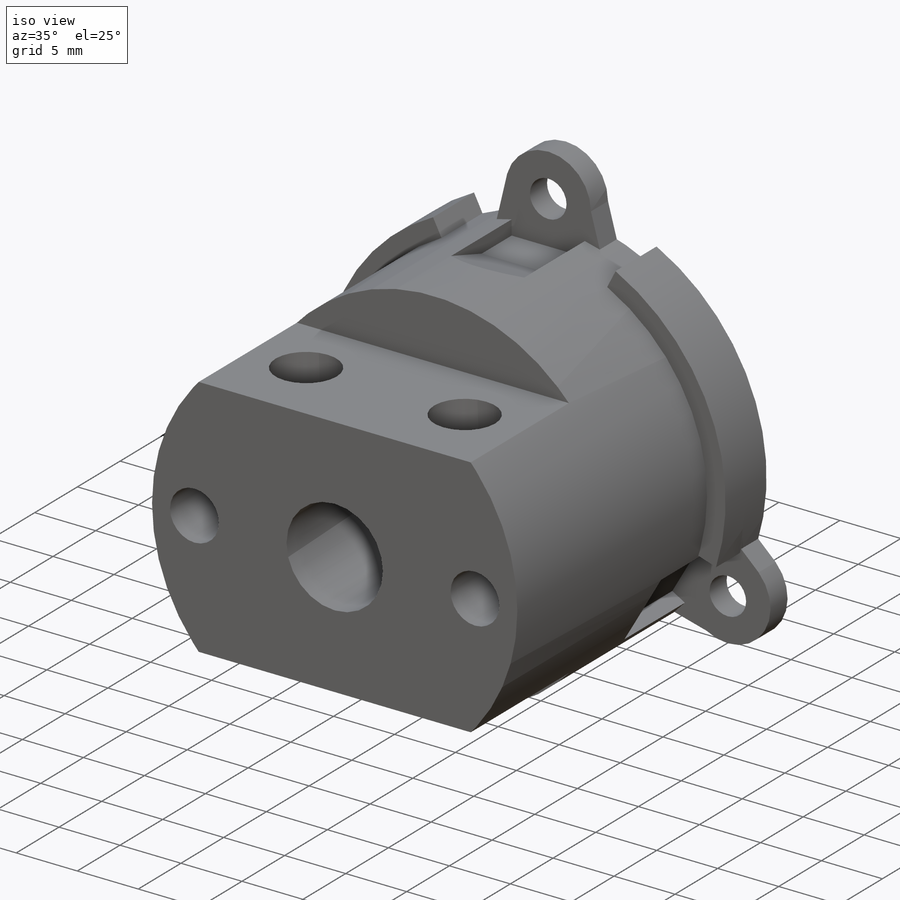
[diagram: iso view]
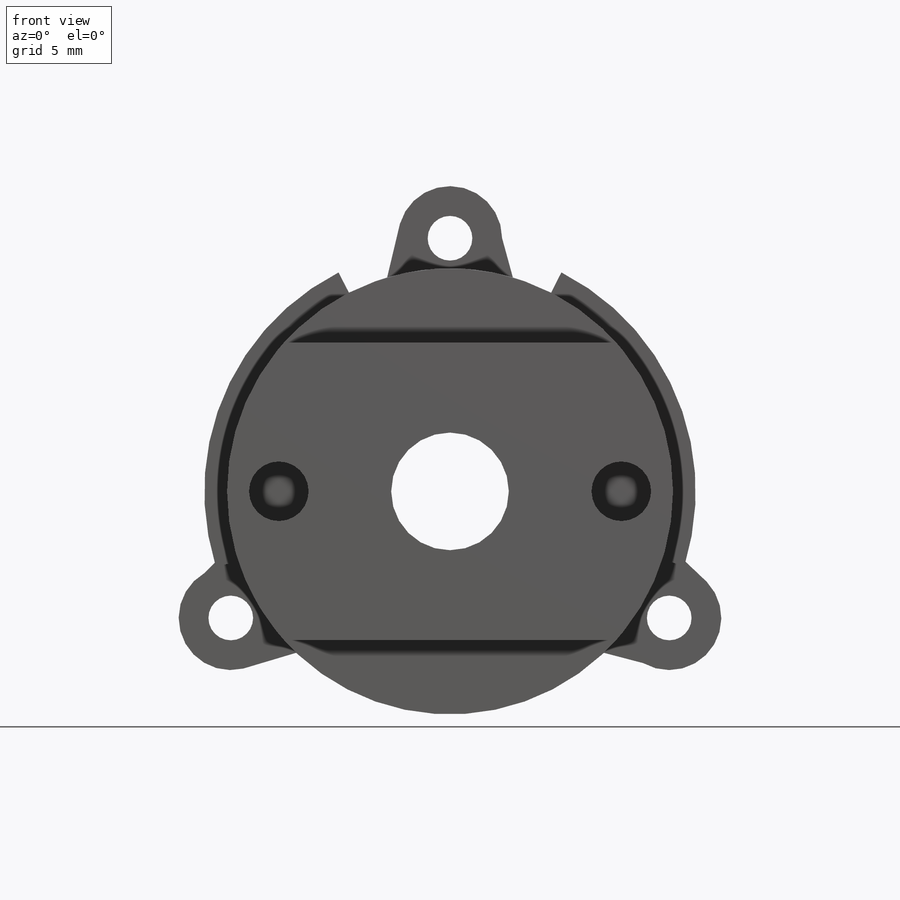
[diagram: front view]
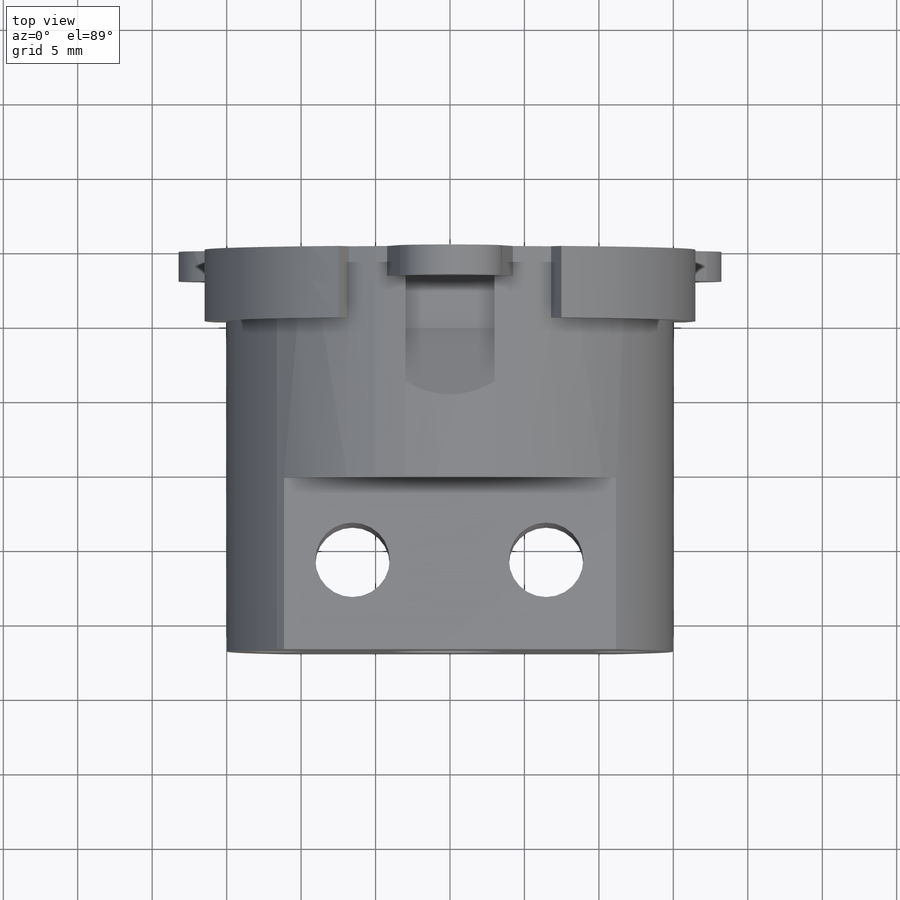
[diagram: top view]
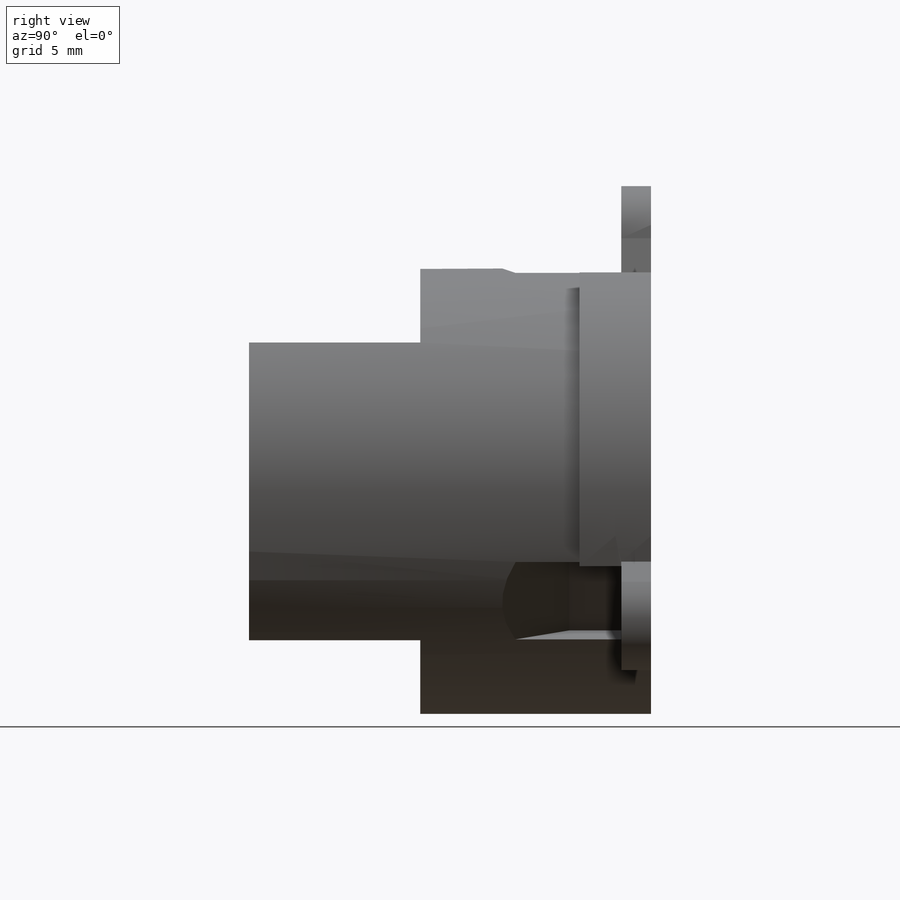
[diagram: right view]
SOLIDWORKS PART (.sldprt)
format: sldprt  version: not decoded by parser v0  size: 294,400 bytes
history: native  units: mm
features: sketch x10, cut_extrude x5, extrude x3, material x1, pattern_circular x1, mirror x1, hole x1 (+14 scaffold rows collapsed)
feature tree (36):
  scaffold x14  (default folders/planes/origin — collapsed)
  material  "Material <not specified>"
  sketch  "Sketch1"  dims[D1=29.95mm]
  extrude  "Extrude1"  Depth=27mm
  sketch  "Sketch2"  dims[D1=3.5mm D2=17.0mm]
  extrude  "Extrude2"  Depth=2mm
  sketch  "Sketch3"  dims[D1=3.0mm D2=17.0mm]
  cut_extrude  "Extrude3"  Depth=3mm
  sketch  "Sketch4"  dims[D1=8.0mm D2=3.5mm D3=1.5mm]
  cut_extrude  "Extrude6"  Depth=3mm
  pattern_circular  "CirPattern1"  Count=3 Angle=360deg
  sketch  "Sketch5"  dims[D2=20.0mm D1=0.0mm]
  cut_extrude  "Extrude7"  Depth=11.5mm
  mirror  "Mirror2"
  sketch  "Sketch6"  dims[D1=5.0mm D2=6.0mm D3=4.5mm D4=13.0mm]
  cut_extrude  "Extrude8"  [1 undecoded]
  sketch  "Sketch7"  dims[D1=7.9mm]
  cut_extrude  "Extrude9"  [1 undecoded]
  hole  "Ø4.0 (4) Diameter Hole1"  Diameter=4mm Depth=15mm
  sketch  "3DSketch1"  dims[D1=23.0mm]
  sketch  "Sketch8"  dims[hole-wizard template sketch: 50 standard entries collapsed; hole parameters above]
  sketch  "Sketch9"  dims[D1=33.0mm D2=1.6mm]
  extrude  "Extrude10"  Depth=4.8mm
decode coverage: 18 of 21 modeling features carry decoded parameters
note: ~ marks probable driven/reference dimensions
note: 2 parameter values undecoded
note: suppression state not decoded; provenance and decode notes live in map.json
